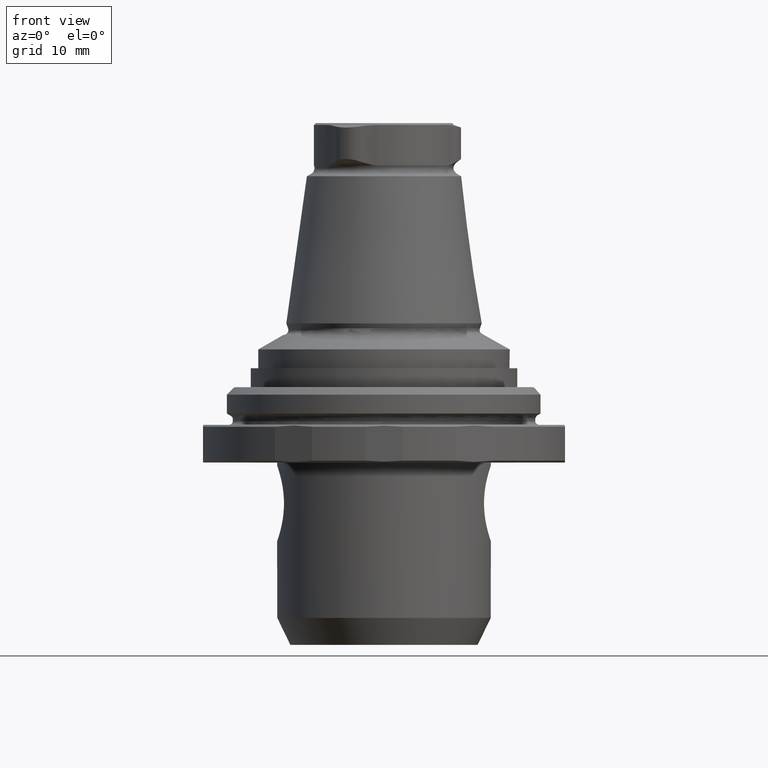
[diagram: clean part render]
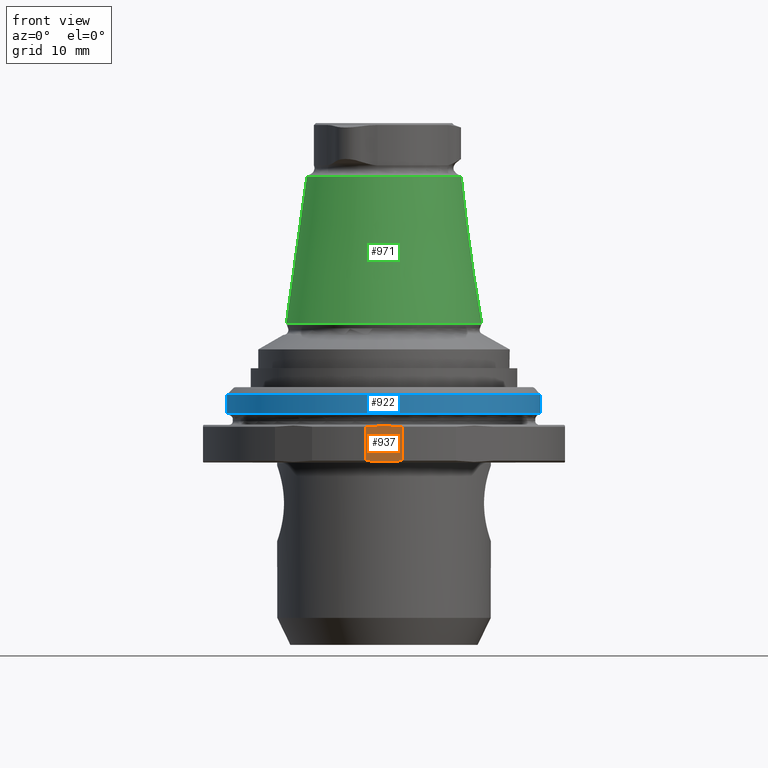
[diagram: same view with three faces highlighted in distinct colors, each labeled with its STEP entity id]
A machine part, front view with three faces highlighted in distinct colors.
Their STEP definitions:

[orange] entity #937 — the highlighted planar face has unit normal (-0, 1, -0).
#26=LINE('',#1578,#54);
#27=LINE('',#1585,#55);
#54=VECTOR('',#1223,1000.);
#55=VECTOR('',#1226,1000.);
#82=PLANE('',#1044);
#242=ORIENTED_EDGE('',*,*,#472,.F.);
#243=ORIENTED_EDGE('',*,*,#473,.F.);
#244=ORIENTED_EDGE('',*,*,#474,.F.);
#245=ORIENTED_EDGE('',*,*,#453,.F.);
#453=EDGE_CURVE('',#580,#581,#653,.F.);
#472=EDGE_CURVE('',#593,#580,#26,.F.);
#473=EDGE_CURVE('',#594,#593,#660,.T.);
#474=EDGE_CURVE('',#581,#594,#27,.T.);
#580=VERTEX_POINT('',#1518);
#581=VERTEX_POINT('',#1523);
#593=VERTEX_POINT('',#1577);
#594=VERTEX_POINT('',#1584);
#653=B_SPLINE_CURVE_WITH_KNOTS('',3,(#1519,#1520,#1521,#1522),
 .UNSPECIFIED.,.F.,.F.,(4,4),(0.0128732132871184,0.0187418041781533),
 .UNSPECIFIED.);
#660=B_SPLINE_CURVE_WITH_KNOTS('',3,(#1580,#1581,#1582,#1583),
 .UNSPECIFIED.,.F.,.F.,(4,4),(0.0128732132871184,0.0187418041781533),
 .UNSPECIFIED.);
#725=EDGE_LOOP('',(#242,#243,#244,#245));
#825=FACE_BOUND('',#725,.T.);
#937=ADVANCED_FACE('',(#825),#82,.F.);
#1044=AXIS2_PLACEMENT_3D('',#1579,#1224,#1225);
#1223=DIRECTION('',(-5.20001084984554E-33,-4.76419527885826E-18,-1.));
#1224=DIRECTION('',(-1.66533453693774E-16,1.,-4.76419527885825E-18));
#1225=DIRECTION('',(-1.,0.,0.));
#1226=DIRECTION('',(-5.20001084984554E-33,-4.76419527885826E-18,-1.));
#1518=CARTESIAN_POINT('',(-2.94575966433106,-28.85,-1.29592921435213));
#1519=CARTESIAN_POINT('',(2.94575966433107,-28.85,-1.29592921435213));
#1520=CARTESIAN_POINT('',(0.978238796386822,-28.85,-1.09607253809283));
#1521=CARTESIAN_POINT('',(-0.985587231434126,-28.85,-1.09681897683622));
#1522=CARTESIAN_POINT('',(-2.94575966433106,-28.85,-1.29592921435213));
#1523=CARTESIAN_POINT('',(2.94575966433107,-28.85,-1.29592921435213));
#1577=CARTESIAN_POINT('',(-2.94575966433106,-28.85,-6.69592921435213));
#1578=CARTESIAN_POINT('',(-2.94575966433106,-28.85,-0.995929214352129));
#1579=CARTESIAN_POINT('',(4.80449013906537E-15,-28.85,-3.99592921435213));
#1580=CARTESIAN_POINT('',(2.94575966433107,-28.85,-6.69592921435213));
#1581=CARTESIAN_POINT('',(0.978238796386823,-28.85,-6.89578589061143));
#1582=CARTESIAN_POINT('',(-0.985587231434125,-28.85,-6.89503945186804));
#1583=CARTESIAN_POINT('',(-2.94575966433106,-28.85,-6.69592921435213));
#1584=CARTESIAN_POINT('',(2.94575966433107,-28.85,-6.69592921435213));
#1585=CARTESIAN_POINT('',(2.94575966433107,-28.85,-0.995929214352129));

[blue] entity #922 — the highlighted cylindrical surface (bore or boss wall) has radius 25 mm, axis along (-0, -0, -1).
#123=CIRCLE('',#1010,25.);
#124=CIRCLE('',#1012,25.);
#185=ORIENTED_EDGE('',*,*,#436,.F.);
#186=ORIENTED_EDGE('',*,*,#437,.T.);
#436=EDGE_CURVE('',#563,#563,#123,.T.);
#437=EDGE_CURVE('',#564,#564,#124,.T.);
#563=VERTEX_POINT('',#1464);
#564=VERTEX_POINT('',#1467);
#701=EDGE_LOOP('',(#185));
#702=EDGE_LOOP('',(#186));
#801=FACE_BOUND('',#701,.T.);
#802=FACE_BOUND('',#702,.T.);
#892=CYLINDRICAL_SURFACE('',#1011,25.);
#922=ADVANCED_FACE('',(#801,#802),#892,.T.);
#1010=AXIS2_PLACEMENT_3D('',#1463,#1149,#1150);
#1011=AXIS2_PLACEMENT_3D('',#1465,#1151,#1152);
#1012=AXIS2_PLACEMENT_3D('',#1466,#1153,#1154);
#1149=DIRECTION('',(-5.20001084984554E-33,-4.76419527885826E-18,-1.));
#1150=DIRECTION('',(-1.,0.,0.));
#1151=DIRECTION('',(-5.20001084984554E-33,-4.76419527885826E-18,-1.));
#1152=DIRECTION('',(-1.,0.,0.));
#1153=DIRECTION('',(-5.20001084984554E-33,-4.76419527885826E-18,-1.));
#1154=DIRECTION('',(-1.,0.,0.));
#1463=CARTESIAN_POINT('',(9.36001952972197E-33,8.57555150194486E-18,0.804070785647871));
#1464=CARTESIAN_POINT('',(-25.,8.57555150194486E-18,0.804070785647871));
#1465=CARTESIAN_POINT('',(0.,0.,-0.99592921435213));
#1466=CARTESIAN_POINT('',(2.49600520792586E-32,2.28681373385197E-17,3.80407078564788));
#1467=CARTESIAN_POINT('',(-25.,2.28681373385197E-17,3.80407078564788));

[green] entity #971 — the highlighted conical surface has half-angle 7.95 deg.
#106=CONICAL_SURFACE('',#1100,15.5400379337869,0.13875367553355);
#163=CIRCLE('',#1099,12.2706905250473);
#164=CIRCLE('',#1101,15.5400379337869);
#402=ORIENTED_EDGE('',*,*,#544,.T.);
#403=ORIENTED_EDGE('',*,*,#545,.F.);
#544=EDGE_CURVE('',#637,#637,#163,.T.);
#545=EDGE_CURVE('',#638,#638,#164,.T.);
#637=VERTEX_POINT('',#1821);
#638=VERTEX_POINT('',#1824);
#764=EDGE_LOOP('',(#402));
#765=EDGE_LOOP('',(#403));
#864=FACE_BOUND('',#764,.T.);
#865=FACE_BOUND('',#765,.T.);
#971=ADVANCED_FACE('',(#864,#865),#106,.T.);
#1099=AXIS2_PLACEMENT_3D('',#1820,#1355,#1356);
#1100=AXIS2_PLACEMENT_3D('',#1822,#1357,#1358);
#1101=AXIS2_PLACEMENT_3D('',#1823,#1359,#1360);
#1355=DIRECTION('',(1.27319154200133E-16,-7.79579225983867E-33,-1.));
#1356=DIRECTION('',(-1.,6.12303176911189E-17,-1.27319154200133E-16));
#1357=DIRECTION('',(1.27319154200133E-16,-7.79579225983867E-33,-1.));
#1358=DIRECTION('',(-1.,6.12303176911189E-17,-1.27319154200133E-16));
#1359=DIRECTION('',(1.27319154200133E-16,-7.79579225983867E-33,-1.));
#1360=DIRECTION('',(-1.,6.12303176911189E-17,-1.27319154200133E-16));
#1820=CARTESIAN_POINT('',(1.140152038231E-15,-6.98118715170611E-32,38.549));
#1821=CARTESIAN_POINT('',(-12.2706905250473,7.51338279138048E-16,38.549));
#1822=CARTESIAN_POINT('',(4.12079965727843E-15,-2.52317872156612E-31,15.1381657247255));
#1823=CARTESIAN_POINT('',(4.12079965727843E-15,-2.52317872156612E-31,15.1381657247255));
#1824=CARTESIAN_POINT('',(-15.5400379337869,9.51521459617813E-16,15.1381657247255));